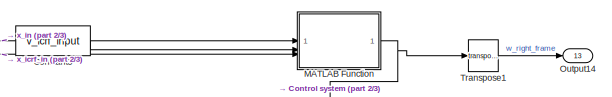
[diagram: root canvas - part 1/3, top right region]
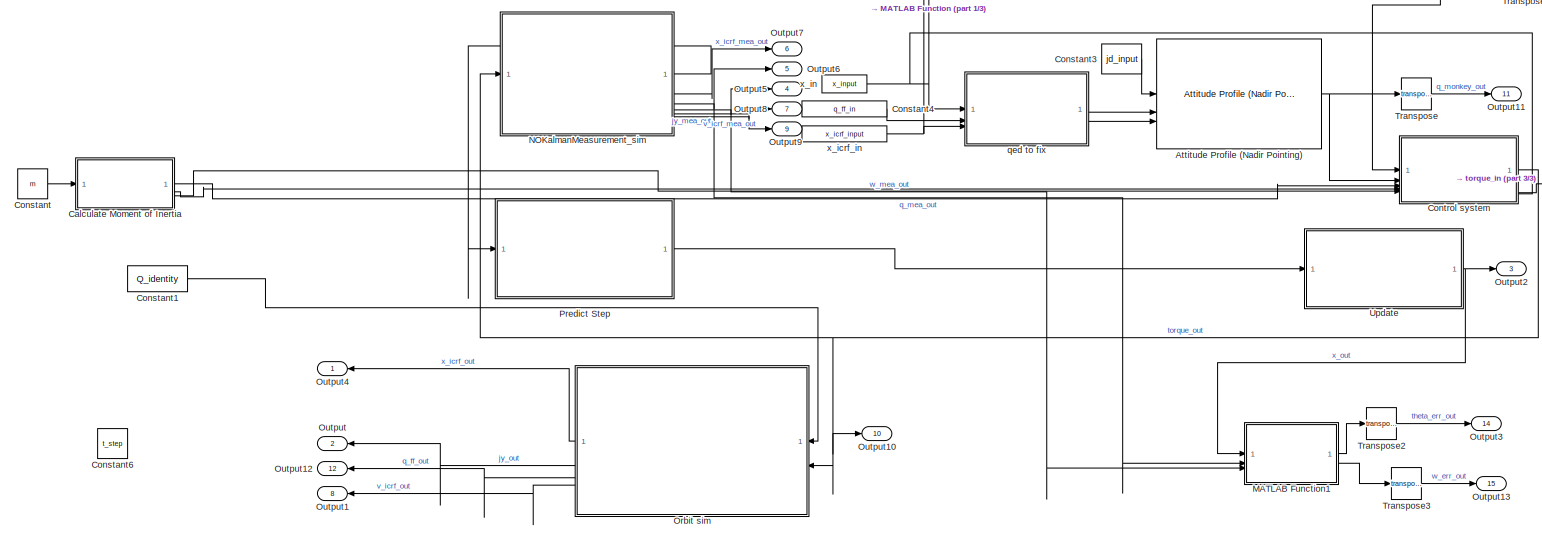
[diagram: root canvas - part 2/3, most of the canvas]
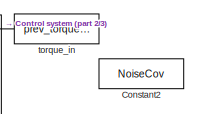
[diagram: root canvas - part 3/3, middle right region]
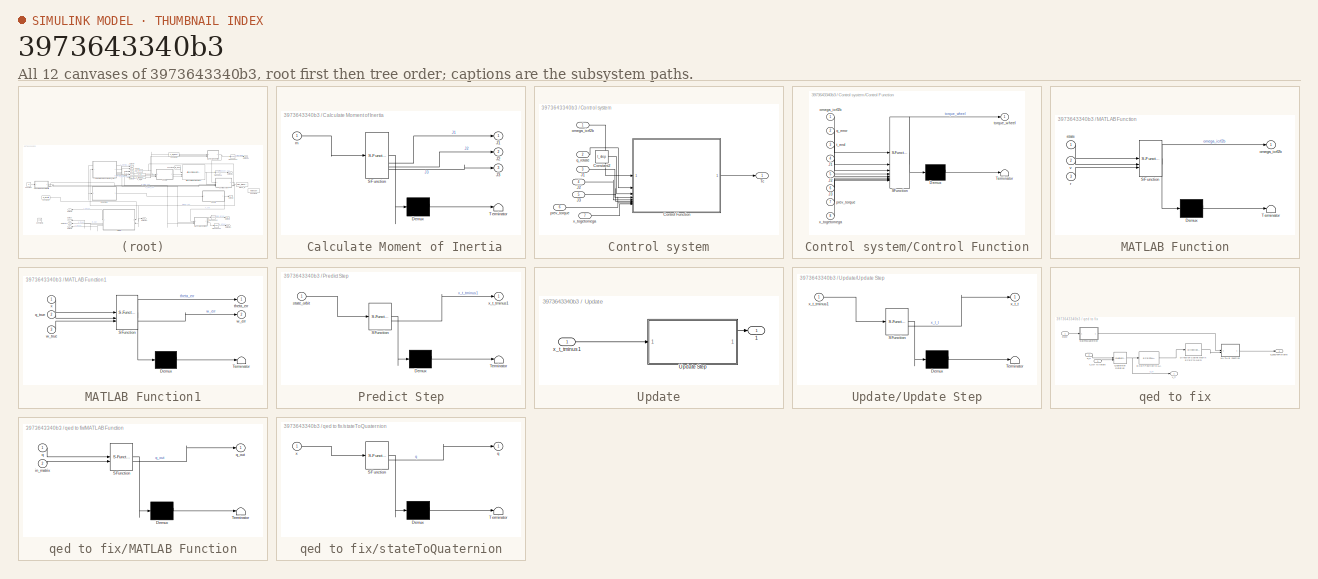
[diagram: thumbnail index - all 12 canvases of the model, root first then tree order]
MODEL slx_3973643340b3
KIND model
CONFIG AbsTol = auto
CONFIG EnableMultiTasking = off
CONFIG FixedStep = 0.05
CONFIG MaxStep = auto
CONFIG MinStep = auto
CONFIG RelTol = 1e-3
CONFIG SampleTimeConstraint = Unconstrained
CONFIG SolverName = FixedStepAuto
CONFIG StartTime = 0.0
CONFIG StopTime = 0.05
WORKSPACE source: mxarray member
WORKSPACE Delta_t = 0.1
WORKSPACE J1 = 0.833333333333
WORKSPACE J2 = 1.08333333333
WORKSPACE J3 = 0.416666666667
WORKSPACE NoiseCov = [0.5 0 0 0 0 0 0 0 0.5 0 0 0 ... (49 elements, 7x7)]
WORKSPACE Orbit_Incl = 51.6
WORKSPACE Q_identity = [0.05 0 0 0 0 0 0 0 0.05 0 0 0 ... (49 elements, 7x7)]
WORKSPACE Sig: Simulink.Signal (value not decoded)
WORKSPACE controlRun = 1
WORKSPACE jd_input = 2458850.00006
WORKSPACE m = 100
WORKSPACE n = 7
WORKSPACE prev_torque_input = [-0.00050779436613 -0.000537657150204 0.000673104501962]
WORKSPACE q_ff_in = [0.768162333731 -0.000607721012165 0.00073835510125 -0.64025441392]
WORKSPACE s_input = [0.126195549094 -0.0456814887308 -0.161020672839 -0.0555064713506 -0.000532606081941 0.000213749478451 -0.00066383496662 -0.0456814887308 0.0300852731757 0.0643242310821 0.0221411903621 0.000189759589489 ... (49 elements, 7x7)]
WORKSPACE s_input_cons = [1.94870414 1.25588909 1.4416761 1.0780205 1.49168854 1.53894753 1.37981514 1.25588909 2.30599344 1.57766712 1.62980068 1.46050557 ... (49 elements, 7x7)]
WORKSPACE savedTorque = [-0.000405741986708 0.000253632743324 0.00087809103841]
WORKSPACE t_step = 0.05
WORKSPACE v_icrf_input = [-2750.79951667 6666.40019935 2573.40073342]
WORKSPACE x_icrf_input = [3649696.21765 3308209.1663 -4676596.46157]
WORKSPACE x_icrf_input_cons = [3649700 3308200 -4676600]
WORKSPACE x_input = [-0.400194557056 -0.190242708716 -0.896104173464 -0.0254821228337 0.443902714712 -0.277487336755 -0.960677002834]
WORKSPACE x_input_cons = [0.2 0.6 0.5 0.59160797831 0.1 0.4 0.9]
BLOCK [SubSystem]  Calculate Moment of Inertia
  ErrorFcn = Stateflow.Translate.translate
  PermitHierarchicalResolution = ExplicitOnly
  Priority = 10
  SFBlockType = MATLAB Function
  TreatAsAtomicUnit = on
BLOCK [Demux]  Calculate Moment of Inertia/ Demux 
  Outputs = 1
BLOCK [S-Function]  Calculate Moment of Inertia/ SFunction 
  EnableBusSupport = on
  FunctionName = sf_sfun
  PortCounts = [1 4]
  SFcnIsStateOwnerBlock = off
  SFunctionDeploymentMode = off
  Tag = Stateflow S-Function 12
BLOCK [Terminator]  Calculate Moment of Inertia/ Terminator 
BLOCK [Outport]  Calculate Moment of Inertia/J1
BLOCK [Outport]  Calculate Moment of Inertia/J2
  Port = 2
BLOCK [Outport]  Calculate Moment of Inertia/J3
  Port = 3
BLOCK [Inport]  Calculate Moment of Inertia/m
BLOCK [Reference] Attitude Profile (Nadir Pointing)  REF=aerolibsatdyn/Attitude Profile
(Nadir Pointing)
  Priority = 3
  SourceBlock = aerolibsatdyn/Attitude Profile\n(Nadir Pointing)
  SourceType = Attitude Profile
BLOCK [Constant] Constant
  Value = m
BLOCK [Constant] Constant1
  Value = Q_identity
BLOCK [Constant] Constant2
  Value = NoiseCov
BLOCK [Constant] Constant3
  Value = jd_input
BLOCK [Constant] Constant4
  Value = q_ff_in
BLOCK [Constant] Constant5
  Value = v_icrf_input
BLOCK [Constant] Constant6
  Value = t_step
BLOCK [SubSystem] Control system
  PortSchema = {"entries":[{"content":{"sides":[{"content":{"connectorIds":["In1","In2","In3","In4","In5"]},"type":"ConnectorPlacement.EquallySpacedRectSide","uuid":"8eb5f269-cc65-4267-936a-9f0f4ccd4d18"},{"content":{"connectorIds":["Out1","In6","In7"],"side":"RIGHT"},"type":"ConnectorPlacement.EquallySpacedRectSide","uuid":"3df96c14-e4ae-45ba-8fc0-de3a9fdcf55a"},{"content":{"side":"TOP"},"type":"ConnectorPlacem...<+258ch>
  Priority = 4
BLOCK [Constant] Control system/Constant2
  Value = t_step
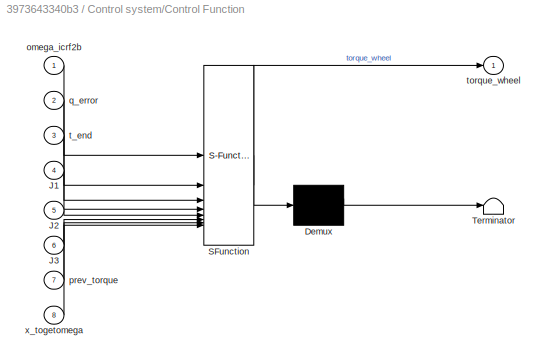
BLOCK [SubSystem] Control system/Control Function
  ErrorFcn = Stateflow.Translate.translate
  PermitHierarchicalResolution = ExplicitOnly
  SFBlockType = MATLAB Function
  TreatAsAtomicUnit = on
BLOCK [Demux] Control system/Control Function/ Demux 
  Outputs = 1
BLOCK [S-Function] Control system/Control Function/ SFunction 
  EnableBusSupport = on
  FunctionName = sf_sfun
  PortCounts = [8 2]
  SFcnIsStateOwnerBlock = off
  SFunctionDeploymentMode = off
  Tag = Stateflow S-Function 15
BLOCK [Terminator] Control system/Control Function/ Terminator 
BLOCK [Inport] Control system/Control Function/J1
  Port = 4
BLOCK [Inport] Control system/Control Function/J2
  Port = 5
BLOCK [Inport] Control system/Control Function/J3
  Port = 6
BLOCK [Inport] Control system/Control Function/omega_icrf2b
BLOCK [Inport] Control system/Control Function/prev_torque
  Port = 7
BLOCK [Inport] Control system/Control Function/q_error
  Port = 2
BLOCK [Inport] Control system/Control Function/t_end
  Port = 3
BLOCK [Outport] Control system/Control Function/torque_wheel
BLOCK [Inport] Control system/Control Function/x_togetomega
  Port = 8
BLOCK [Inport] Control system/J1
  Port = 3
BLOCK [Inport] Control system/J2
  Port = 4
BLOCK [Inport] Control system/J3
  Port = 5
BLOCK [Outport] Control system/Tc
BLOCK [Inport] Control system/omega_icrf2b
BLOCK [Inport] Control system/prev_torque
  Port = 6
BLOCK [Inport] Control system/q_rotate
  Port = 2
BLOCK [Inport] Control system/x_togetomega
  Port = 7
BLOCK [SubSystem] MATLAB Function
  ErrorFcn = Stateflow.Translate.translate
  PermitHierarchicalResolution = ExplicitOnly
  SFBlockType = MATLAB Function
  TreatAsAtomicUnit = on
BLOCK [Demux] MATLAB Function/ Demux 
  Outputs = 1
BLOCK [S-Function] MATLAB Function/ SFunction 
  EnableBusSupport = on
  FunctionName = sf_sfun
  PortCounts = [3 2]
  SFcnIsStateOwnerBlock = off
  SFunctionDeploymentMode = off
  Tag = Stateflow S-Function 7
BLOCK [Terminator] MATLAB Function/ Terminator 
BLOCK [Outport] MATLAB Function/omega_icrf2b
BLOCK [Inport] MATLAB Function/r
  Port = 3
BLOCK [Inport] MATLAB Function/state
BLOCK [Inport] MATLAB Function/v
  Port = 2
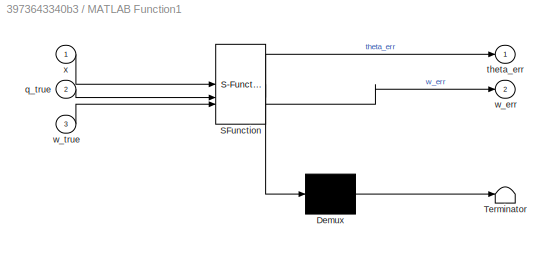
BLOCK [SubSystem] MATLAB Function1
  ErrorFcn = Stateflow.Translate.translate
  PermitHierarchicalResolution = ExplicitOnly
  SFBlockType = MATLAB Function
  TreatAsAtomicUnit = on
BLOCK [Demux] MATLAB Function1/ Demux 
  Outputs = 1
BLOCK [S-Function] MATLAB Function1/ SFunction 
  EnableBusSupport = on
  FunctionName = sf_sfun
  PortCounts = [3 3]
  SFcnIsStateOwnerBlock = off
  SFunctionDeploymentMode = off
  Tag = Stateflow S-Function 5
BLOCK [Terminator] MATLAB Function1/ Terminator 
BLOCK [Inport] MATLAB Function1/q_true
  Port = 2
BLOCK [Outport] MATLAB Function1/theta_err
BLOCK [Outport] MATLAB Function1/w_err
  Port = 2
BLOCK [Inport] MATLAB Function1/w_true
  Port = 3
BLOCK [Inport] MATLAB Function1/x
BLOCK [SubSystem] NOKalmanMeasurement_sim
  ReferencedSubsystem = NOKalmanMeasurement_sim
BLOCK [SubSystem] Orbit sim
  Priority = 7
  ReferencedSubsystem = Orbit_sim
BLOCK [Outport] Output
  Port = 2
BLOCK [Outport] Output1
  NameLocation = top
  Port = 8
BLOCK [Outport] Output10
  Port = 10
BLOCK [Outport] Output11
  Port = 11
BLOCK [Outport] Output12
  Port = 12
BLOCK [Outport] Output13
  Port = 15
BLOCK [Outport] Output14
  Port = 13
BLOCK [Outport] Output2
  Port = 3
BLOCK [Outport] Output3
  Port = 14
BLOCK [Outport] Output4
BLOCK [Outport] Output5
  Port = 4
BLOCK [Outport] Output6
  Port = 5
BLOCK [Outport] Output7
  Port = 6
BLOCK [Outport] Output8
  Port = 7
BLOCK [Outport] Output9
  Port = 9
BLOCK [SubSystem] Predict Step
  ErrorFcn = Stateflow.Translate.translate
  PermitHierarchicalResolution = ExplicitOnly
  Priority = 11
  SFBlockType = MATLAB Function
  TreatAsAtomicUnit = on
BLOCK [Demux] Predict Step/ Demux 
  Outputs = 1
BLOCK [S-Function] Predict Step/ SFunction 
  EnableBusSupport = on
  FunctionName = sf_sfun
  PortCounts = [1 2]
  SFcnIsStateOwnerBlock = off
  SFunctionDeploymentMode = off
  Tag = Stateflow S-Function 2
BLOCK [Terminator] Predict Step/ Terminator 
BLOCK [Inport] Predict Step/state_orbit
BLOCK [Outport] Predict Step/x_t_tminus1
BLOCK [Math] Transpose
  Operator = transpose
BLOCK [Math] Transpose1
  Operator = transpose
BLOCK [Math] Transpose2
  Operator = transpose
BLOCK [Math] Transpose3
  Operator = transpose
BLOCK [SubSystem] Update
  Priority = 12
BLOCK [Outport] Update/1
BLOCK [SubSystem] Update/Update Step
  ErrorFcn = Stateflow.Translate.translate
  PermitHierarchicalResolution = ExplicitOnly
  SFBlockType = MATLAB Function
  TreatAsAtomicUnit = on
BLOCK [Demux] Update/Update Step/ Demux 
  Outputs = 1
BLOCK [S-Function] Update/Update Step/ SFunction 
  EnableBusSupport = on
  FunctionName = sf_sfun
  PortCounts = [1 2]
  SFcnIsStateOwnerBlock = off
  SFunctionDeploymentMode = off
  Tag = Stateflow S-Function 1
BLOCK [Terminator] Update/Update Step/ Terminator 
BLOCK [Outport] Update/Update Step/x_t_t
BLOCK [Inport] Update/Update Step/x_t_tminus1
BLOCK [Inport] Update/x_t_tminus1
BLOCK [SubSystem] qed to fix
  Priority = 2
BLOCK [Reference] qed to fix/Direction Cosine Matrix ECEF to NED  REF=aerolibtransform2/Direction Cosine Matrix
ECEF to NED
  SourceBlock = aerolibtransform2/Direction Cosine Matrix\nECEF to NED
  SourceType = DCM ECEF to NED
BLOCK [ECEF2LLA] qed to fix/ECEF Position to LLA
BLOCK [SubSystem] qed to fix/MATLAB Function
  ErrorFcn = Stateflow.Translate.translate
  PermitHierarchicalResolution = ExplicitOnly
  SFBlockType = MATLAB Function
  TreatAsAtomicUnit = on
BLOCK [Demux] qed to fix/MATLAB Function/ Demux 
  Outputs = 1
BLOCK [S-Function] qed to fix/MATLAB Function/ SFunction 
  EnableBusSupport = on
  FunctionName = sf_sfun
  PortCounts = [2 2]
  SFcnIsStateOwnerBlock = off
  SFunctionDeploymentMode = off
  Tag = Stateflow S-Function 3
BLOCK [Terminator] qed to fix/MATLAB Function/ Terminator 
BLOCK [Inport] qed to fix/MATLAB Function/in_matrix
  Port = 2
BLOCK [Inport] qed to fix/MATLAB Function/q
BLOCK [Outport] qed to fix/MATLAB Function/q_out
BLOCK [Reference] qed to fix/Quaternion Rotation  REF=aerolibutil/Quaternion
Rotation
  SourceBlock = aerolibutil/Quaternion\nRotation
  SourceType = Quaternion Rotation
BLOCK [Outport] qed to fix/q_bodyToFixframe
  Port = 2
BLOCK [Inport] qed to fix/q_ff
  Port = 2
BLOCK [Inport] qed to fix/state
BLOCK [SubSystem] qed to fix/stateToQuaternion
  ErrorFcn = Stateflow.Translate.translate
  PermitHierarchicalResolution = ExplicitOnly
  SFBlockType = MATLAB Function
  TreatAsAtomicUnit = on
BLOCK [Demux] qed to fix/stateToQuaternion/ Demux 
  Outputs = 1
BLOCK [S-Function] qed to fix/stateToQuaternion/ SFunction 
  EnableBusSupport = on
  FunctionName = sf_sfun
  PortCounts = [1 2]
  SFcnIsStateOwnerBlock = off
  SFunctionDeploymentMode = off
  Tag = Stateflow S-Function 4
BLOCK [Terminator] qed to fix/stateToQuaternion/ Terminator 
BLOCK [Outport] qed to fix/stateToQuaternion/q
BLOCK [Inport] qed to fix/stateToQuaternion/x
BLOCK [Outport] qed to fix/x_ff
BLOCK [Inport] qed to fix/x_icrf to rotate
  Port = 3
BLOCK [Constant] torque_in
  NameLocation = top
  Value = prev_torque_input
BLOCK [Constant] x_icrf_in
  Value = x_icrf_input
BLOCK [Constant] x_in
  NameLocation = top
  Value = x_input
LINE  Calculate Moment of Inertia:1 -> Control system:3
LINE  Calculate Moment of Inertia:2 -> Control system:4
LINE  Calculate Moment of Inertia:3 -> Control system:5
NET Attitude Profile (Nadir Pointing):1 -> Control system:2, Transpose:1
LINE Constant1:1 -> Orbit sim:1
LINE Constant3:1 -> Attitude Profile (Nadir Pointing):1
LINE Constant4:1 -> qed to fix:2
LINE Constant5:1 -> MATLAB Function:2
LINE Constant:1 ->  Calculate Moment of Inertia:1
LINE Control system/Constant2:1 -> Control system/Control Function:3
LINE Control system/Control Function:1 -> Control system/Tc:1
LINE Control system/J1:1 -> Control system/Control Function:4
LINE Control system/J2:1 -> Control system/Control Function:5
LINE Control system/J3:1 -> Control system/Control Function:6
LINE Control system/omega_icrf2b:1 -> Control system/Control Function:1
LINE Control system/prev_torque:1 -> Control system/Control Function:7
LINE Control system/q_rotate:1 -> Control system/Control Function:2
LINE Control system/x_togetomega:1 -> Control system/Control Function:8
NET Control system:1 -> NOKalmanMeasurement_sim:1, Orbit sim:2, Output10:1
LINE MATLAB Function1:1 -> Transpose2:1
LINE MATLAB Function1:2 -> Transpose3:1
NET MATLAB Function:1 -> Control system:1, Transpose1:1
LINE NOKalmanMeasurement_sim:1 -> Predict Step:1
LINE NOKalmanMeasurement_sim:2 -> Output7:1
NET NOKalmanMeasurement_sim:3 -> MATLAB Function1:2, Output6:1
NET NOKalmanMeasurement_sim:4 -> MATLAB Function1:3, Output5:1
LINE NOKalmanMeasurement_sim:5 -> Output8:1
LINE NOKalmanMeasurement_sim:6 -> Output9:1
LINE Orbit sim:1 -> Output4:1
LINE Orbit sim:2 -> Output:1
LINE Orbit sim:3 -> Output12:1
LINE Orbit sim:4 -> Output1:1
LINE Predict Step:1 -> Update:1
LINE Transpose1:1 -> Output14:1
LINE Transpose2:1 -> Output3:1
LINE Transpose3:1 -> Output13:1
LINE Transpose:1 -> Output11:1
LINE Update/Update Step:1 -> Update/1:1
LINE Update/x_t_tminus1:1 -> Update/Update Step:1
NET Update:1 -> MATLAB Function1:1, Output2:1
LINE qed to fix/Direction Cosine Matrix ECEF to NED:1 -> qed to fix/MATLAB Function:2
LINE qed to fix/ECEF Position to LLA:1 -> qed to fix/Direction Cosine Matrix ECEF to NED:1
LINE qed to fix/MATLAB Function:1 -> qed to fix/q_bodyToFixframe:1
NET qed to fix/Quaternion Rotation:1 -> qed to fix/ECEF Position to LLA:1, qed to fix/x_ff:1
LINE qed to fix/q_ff:1 -> qed to fix/Quaternion Rotation:1
LINE qed to fix/state:1 -> qed to fix/stateToQuaternion:1
LINE qed to fix/stateToQuaternion:1 -> qed to fix/MATLAB Function:1
LINE qed to fix/x_icrf to rotate:1 -> qed to fix/Quaternion Rotation:2
LINE qed to fix:1 -> Attitude Profile (Nadir Pointing):2
LINE qed to fix:2 -> Attitude Profile (Nadir Pointing):3
LINE torque_in:1 -> Control system:6
NET x_icrf_in:1 -> MATLAB Function:3, qed to fix:3
NET x_in:1 -> Control system:7, MATLAB Function:1, qed to fix:1
note: NET lines group one-source signal fan-out (src -> all destinations, sorted); 1:1 wires keep LINE
CHART Update/Update Step states=1 transitions=1
  STATE_LABEL 'eML_blk_kernel()'
  STATE_LABEL 'SCRIPT:\nfunction x_t_t  = update(x_t_tminus1)\n\n%Update\nx_t_t = x_t_tminus1;\nx_t_t(1:4)=x_t_t(1:4)/norm(x_t_t(1:4));\n\nend'
CHART Predict Step states=1 transitions=1
  STATE_LABEL 'eML_blk_kernel()'
  STATE_LABEL 'SCRIPT:\nfunction x_t_tminus1 = predict(state_orbit)\n\n\nx_t_tminus1 = state_orbit; %use state from orbit with noise\n% x_t_tminus1 = feval(f_t,x_tminus1_tminus1);'
CHART qed to fix/MATLAB Function states=1 transitions=1
  STATE_LABEL 'eML_blk_kernel()'
  STATE_LABEL 'SCRIPT:\nfunction q_out= fcn(q, in_matrix)\ninv_m = inv(in_matrix);\nq_second = rotm2quat(inv_m);\nq_first = quatconj(q);\nq_out = transpose(quatmultiply(q_second,q_first));\n'
CHART qed to fix/stateToQuaternion states=1 transitions=1
  STATE_LABEL 'eML_blk_kernel()'
  STATE_LABEL 'SCRIPT:\nfunction q = getq(x)\nq_temp = x(1:4);\nq = transpose(q_temp);\nend'
CHART MATLAB Function1 states=1 transitions=1
  STATE_LABEL 'eML_blk_kernel()'
  STATE_LABEL 'SCRIPT:\nfunction [theta_err, w_err]= fcn(x, q_true, w_true)\ntheta_est = 2*acos(x(1));\ntheta_true = 2*acos(q_true(1));\ntheta_err = theta_est - theta_true;\n\nw_err = transpose(x(5:7))-w_true;'
CHART MATLAB Function states=1 transitions=1
  STATE_LABEL 'eML_blk_kernel()'
  STATE_LABEL 'SCRIPT:\nfunction omega_icrf2b = omega_frame(state,v,r)\nomega_ned2b = state(5:7);\nomega_icrf2ned = -cross(r,v)/norm(r)^2;\nomega_icrf2b = omega_ned2b + omega_icrf2ned;'
CHART  Calculate Moment of Inertia states=1 transitions=1
  STATE_LABEL 'eML_blk_kernel()'
  STATE_LABEL 'SCRIPT:\nfunction [J1,J2,J3]=momentInertia(m)\nJ1 = m/120;\nJ2 = 13*m/1200;\nJ3 = 5*m/1200;\ncoder.extrinsic("get_param");\nmdlWks = get_param(\'No_Kalman_FullSystem\',\'ModelWorkspace\');\nassignin(mdlWks,"J1",J1)\nassignin(mdlWks,"J2",J2)\nassignin(mdlWks,"J3",J3)\nend'
CHART Control system/Control Function states=1 transitions=1
  STATE_LABEL 'eML_blk_kernel()'
  STATE_LABEL 'SCRIPT:\nfunction torque_wheel = fcn(omega_icrf2b, q_error, t_end, J1, J2, J3, prev_torque, x_togetomega)\ncoder.extrinsic("get_param");\ncoder.extrinsic("getVariable");\ncoder.extrinsic("quat2angle");\n\nmdlWks = get_param(\'No_Kalman_FullSystem\',\'ModelWorkspace\');\nctrlRn = getVariable(mdlWks,\'controlRun\');\nif ~ctrlRn\n    %disp(\'enter Control\');\n\n    if(norm(x_togetomega(5:7)) > 0.15)\n        torque_whe...<+1194ch>'
CHART  states=0 transitions=0
CHART  states=0 transitions=0
CHART  states=0 transitions=0
CHART  states=0 transitions=0
CHART  states=0 transitions=0
CHART  states=0 transitions=0
CHART  states=0 transitions=0
CHART  states=0 transitions=0
